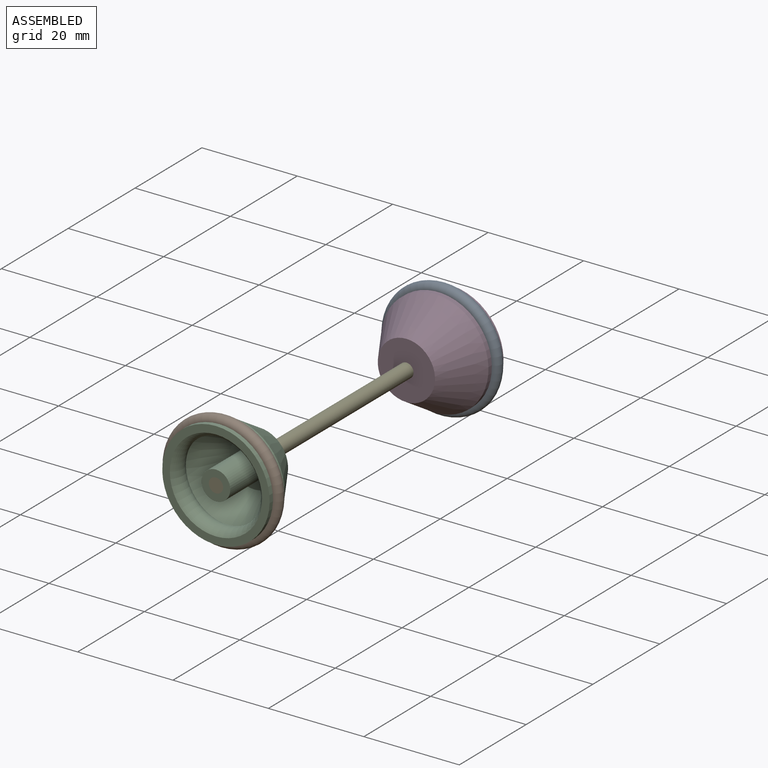
[diagram: assembled view]
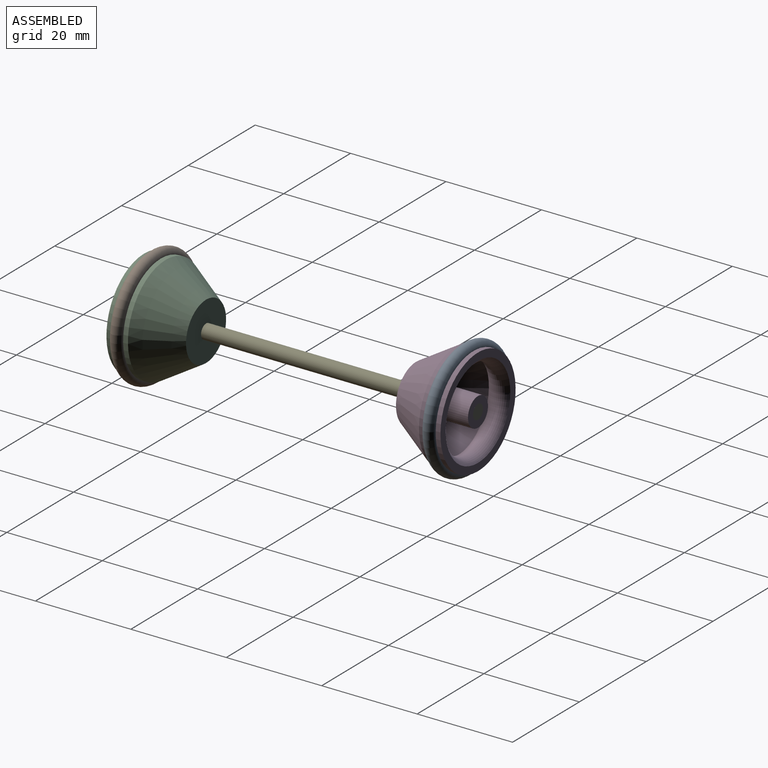
[diagram: assembled view, second angle]
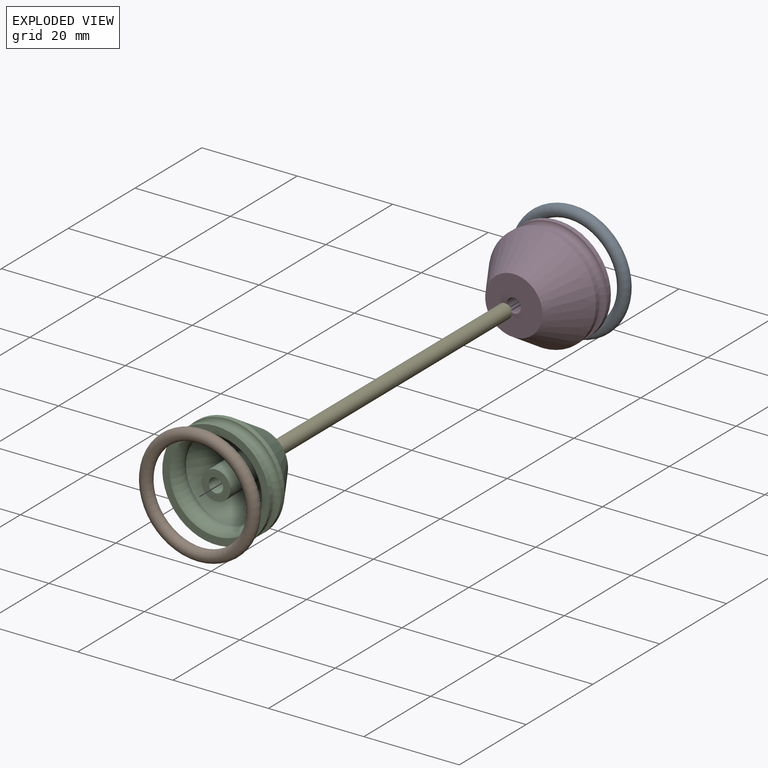
[diagram: exploded view]
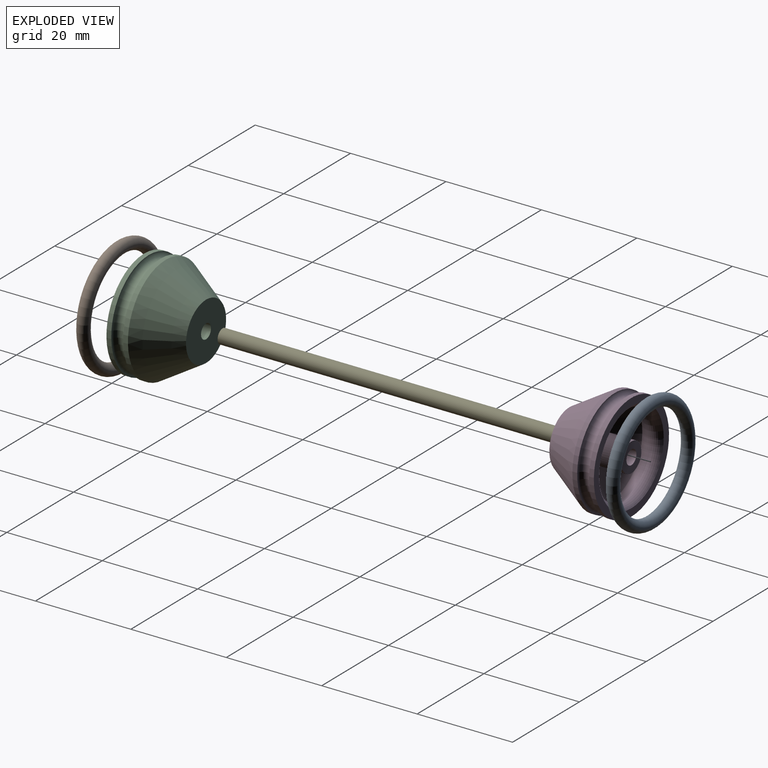
[diagram: exploded view, second angle]
ASSEMBLY  parts=5 mates=4
PART A: 1 faces, bbox 27.1x2.5x27.1 mm
  f0: torus R=11.25mm, axis (0,-1,0), area 555.2mm2
PART B: same geometry as A
PART C: 12 faces, bbox 26.3x13.5x26.3 mm
  f0: plane 22.5x22.5mm, normal (0,-1,0), area 103.9mm2, adj f6,f8
  f1: plane 6x6mm, normal (0,-1,0), area 21.2mm2, adj f7,f11
  f2: plane 12x12mm, normal (0,1,0), area 106mm2, adj f3,f7
  f3: cone r=11.25mm half-angle=31.7deg, axis (0,-1,0), area 541.4mm2, adj f2,f4
  f4: cylinder r=11.25mm len=22.5mm, axis (0,1,0), area 70.7mm2, adj f3,f5
  f5: torus R=11.25mm, axis (0,1,0), area 257.9mm2, adj f4,f6
  f6: cylinder r=11.25mm len=22.5mm, axis (0,1,0), area 70.7mm2, adj f0,f5
  f7: cylinder r=1.5mm len=13mm, axis (0,-1,0), area 122.5mm2, adj f1,f2
  f8: torus R=11.25mm, axis (0,1,0), area 285.4mm2, adj f0,f9
  f9: cone r=9.97mm half-angle=31.7deg, axis (0,-1,0), area 385.2mm2, adj f8,f10
  f10: plane 10.33x10.33mm, normal (0,-1,0), area 55.5mm2, adj f9,f11
  f11: cylinder r=3mm len=11.5mm, axis (0,-1,0), area 216.8mm2, adj f1,f10
PART D: same geometry as C
PART E: 3 faces, bbox 3x70x3 mm
  f0: plane 3x3mm, normal (0,1,0), area 7.1mm2, adj f2
  f1: plane 3x3mm, normal (0,-1,0), area 7.1mm2, adj f2
  f2: cylinder r=1.5mm len=70mm, axis (0,-1,0), area 659.7mm2, adj f0,f1
PLACE A rot(axis=(1,0,0),180deg) t=(20,-65.5,60)mm
PLACE B t=(20,65.5,25)mm
PLACE C t=(-6.58,-25.73,-3.9)mm
PLACE D rot(axis=(1,0,0),180deg) t=(-6.58,25.73,88.9)mm
PLACE E at identity fixed
MATE fastened B.f0 <-> C.f3  axis (0,-1,0) through (-142.5,-32.75,42.5)mm
MATE fastened C.f3 <-> E.f2  axis (0,-1,0) through (-142.5,-35,42.5)mm
MATE fastened E.f2 <-> D.f3  axis (0,1,0) through (-142.5,35,42.5)mm
MATE fastened D.f3 <-> A.f0  axis (0,-1,0) through (-142.5,32.75,42.5)mm
